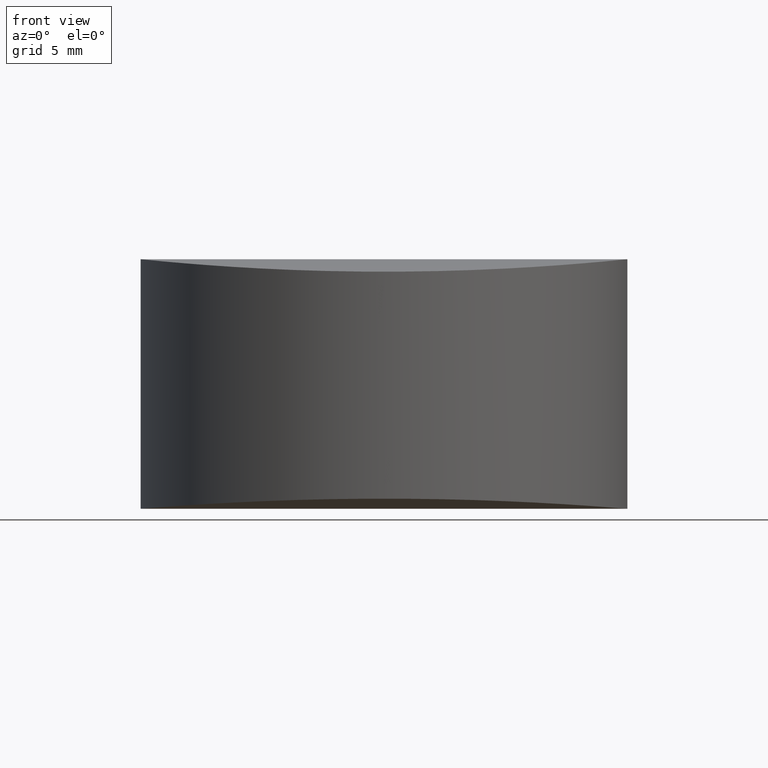
[diagram: clean part render]
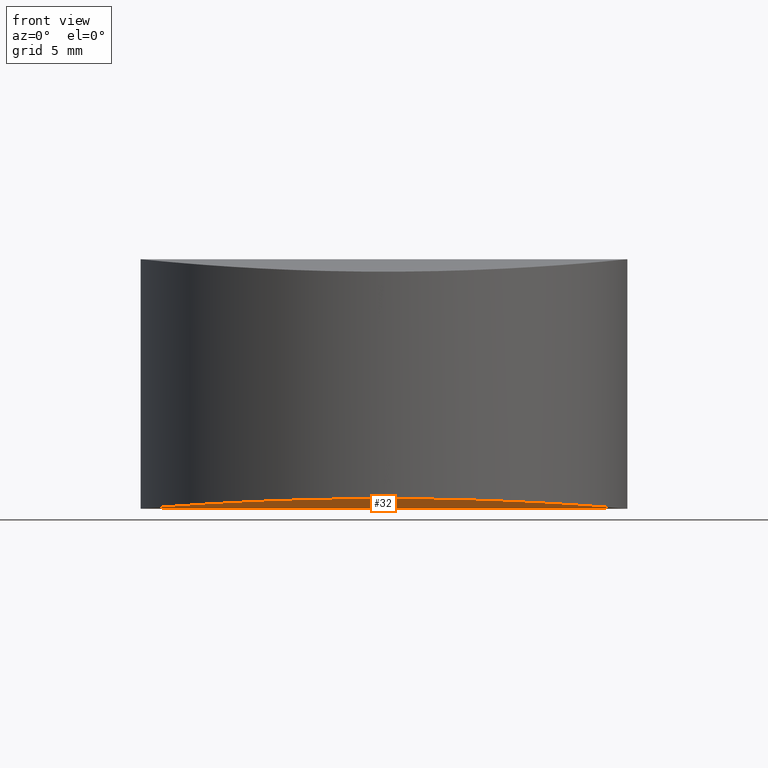
[diagram: same view with one face highlighted and labeled with its STEP entity id]
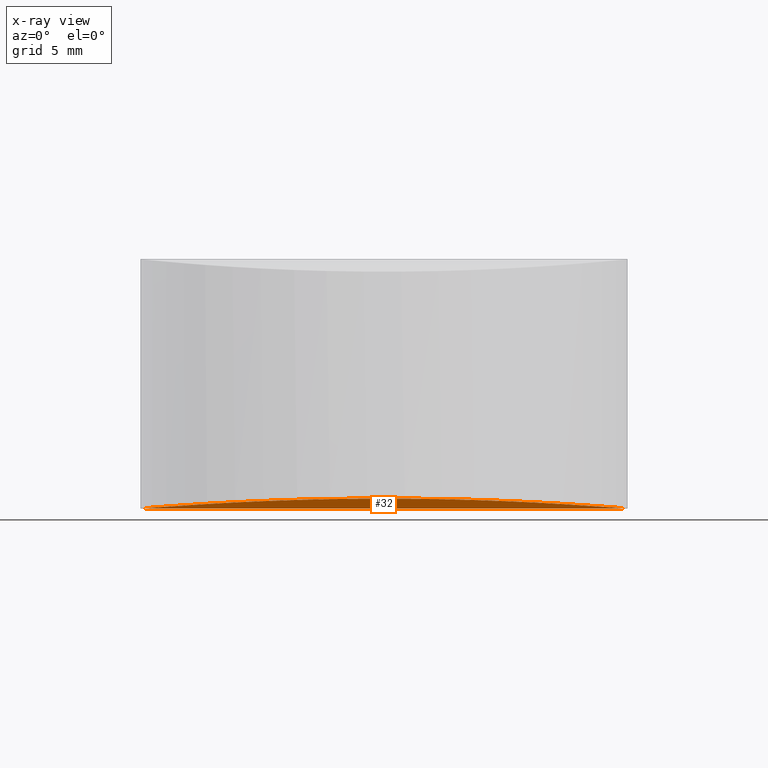
[diagram: x-ray of the same camera — body ghosted, the highlighted face saturated]
A machine part, front view. The second image highlights one B-rep face of the part: STEP entity #32.
The next image is the same camera in x-ray: the body ghosted, the highlighted face saturated — about 0% of this face is hidden behind the body in this view.
In plain terms, the highlighted cylindrical surface (partial cylindrical patch) has radius 140.5 mm, axis along (-1, -0, -0).
Its self-contained STEP definition (entity closure, byte-faithful):
#3 = EDGE_CURVE ( 'NONE', #56, #81, #285, .T. ) ;
#6 = CARTESIAN_POINT ( 'NONE',  ( 3.982995561547500785, 8.802627526571223271, -11.72419075248639686 ) ) ;
#8 = CARTESIAN_POINT ( 'NONE',  ( 13.23733871564719067, 11.62414453370664624, -11.51839965430079715 ) ) ;
#10 = CARTESIAN_POINT ( 'NONE',  ( 0.07583883942204949768, 1.537218956647703028, -11.99362423848649684 ) ) ;
#12 = CARTESIAN_POINT ( 'NONE',  ( 21.85655647599278595, 5.858164344078640617, -11.87926018310879606 ) ) ;
#14 = CARTESIAN_POINT ( 'NONE',  ( 0.6200715280266766438, 3.777770137074502710, -11.94967941558338254 ) ) ;
#22 = CARTESIAN_POINT ( 'NONE',  ( 4.551175283784459680, -9.293829745750009863, -11.69293338668584248 ) ) ;
#30 = CARTESIAN_POINT ( 'NONE',  ( 23.39999999999999858, -1.734723475976807094E-14, -12.00000000000002842 ) ) ;
#32 = ADVANCED_FACE ( 'NONE', ( #231 ), #315, .T. ) ;
#37 = CARTESIAN_POINT ( 'NONE',  ( 0.2986171060930548071, -2.653989659704931725, -11.97542864770713855 ) ) ;
#39 = CARTESIAN_POINT ( 'NONE',  ( 12.47301215958805720, 11.69999035556283218, -11.51200029168871097 ) ) ;
#41 = CARTESIAN_POINT ( 'NONE',  ( 18.84891339696278578, 9.293760770083288492, -11.69293796382826756 ) ) ;
#45 = CARTESIAN_POINT ( 'NONE',  ( 23.32416274024963343, -1.537202877766311815, -11.99362437258974090 ) ) ;
#47 = CARTESIAN_POINT ( 'NONE',  ( 14.72462325462811528, -11.30880293928673908, -11.54418389181506832 ) ) ;
#49 = CARTESIAN_POINT ( 'NONE',  ( 16.88662854336311625, -10.51552536016703066, -11.60624649086615534 ) ) ;
#51 = CARTESIAN_POINT ( 'NONE',  ( 23.39999999999999858, -1.734723475976807094E-14, -12.00000000000002842 ) ) ;
#56 = VERTEX_POINT ( 'NONE', #92 ) ;
#61 = CARTESIAN_POINT ( 'NONE',  ( 2.400120778135727519E-15, -1.591439800476566529E-14, -12.00000000000002487 ) ) ;
#63 = CARTESIAN_POINT ( 'NONE',  ( 7.575573302874869519, 10.95563577515336995, -11.57228736914585987 ) ) ;
#65 = CARTESIAN_POINT ( 'NONE',  ( 1.565426281899078509, 5.858907706403404525, -11.87819331356852892 ) ) ;
#67 = CARTESIAN_POINT ( 'NONE',  ( 17.55894296685362832, 10.13455308222904705, -11.63412722221021944 ) ) ;
#69 = CARTESIAN_POINT ( 'NONE',  ( 10.16283743065999623, -11.62416830244085730, -11.51839767062848985 ) ) ;
#72 = CARTESIAN_POINT ( 'NONE',  ( 0.7444088895784195525, -4.124545188749847213, -11.93989314708536398 ) ) ;
#74 = CARTESIAN_POINT ( 'NONE',  ( 23.39999999999998792, -0.7728711627919478966, -12.00000000000002487 ) ) ;
#75 = CARTESIAN_POINT ( 'NONE',  ( 5.509302477299087286, -9.935441898776597114, -11.64843186779766526 ) ) ;
#78 = CARTESIAN_POINT ( 'NONE',  ( 18.82133060416483161, -9.291127797251709453, -11.69267052076263269 ) ) ;
#81 = VERTEX_POINT ( 'NONE', #61 ) ;
#86 = CARTESIAN_POINT ( 'NONE',  ( 0.8779362651289264186, 4.495236254901521455, -11.92939142474985559 ) ) ;
#88 = DIRECTION ( 'NONE',  ( -1.000000000000000000, -0.000000000000000000, -0.000000000000000000 ) ) ;
#90 = CARTESIAN_POINT ( 'NONE',  ( 19.43711588047457184, 8.809561870354297497, -11.72458239256462065 ) ) ;
#92 = CARTESIAN_POINT ( 'NONE',  ( 23.39999999999999858, -1.734723475976807094E-14, -12.00000000000002842 ) ) ;
#94 = CARTESIAN_POINT ( 'NONE',  ( 15.47784711752203357, 11.07990198258445602, -11.56247997843347264 ) ) ;
#97 = CARTESIAN_POINT ( 'NONE',  ( 19.70062871853417974, -8.545482839970350852, -11.74014259164259322 ) ) ;
#99 = CARTESIAN_POINT ( 'NONE',  ( 21.63542989001358308, -6.190716718690232767, -11.86391005497066864 ) ) ;
#101 = CARTESIAN_POINT ( 'NONE',  ( 2.897445945604871120, -7.717088157217175670, -11.78822306249216467 ) ) ;
#103 = CARTESIAN_POINT ( 'NONE',  ( 13.23282361508650418, -11.62416520523439267, -11.51839519002638923 ) ) ;
#105 = CARTESIAN_POINT ( 'NONE',  ( 21.83460593353969159, -5.858851705195758264, -11.87819564413548790 ) ) ;
#110 = CARTESIAN_POINT ( 'NONE',  ( 23.00881916514715542, 3.024562361228710916, -11.96792190223194119 ) ) ;
#112 = B_SPLINE_CURVE_WITH_KNOTS ( 'NONE', 3,
 ( #347, #201, #291, #37, #176, #239, #72, #208, #277, #273, #235, #101, #152, #182, #22, #75, #269, #180, #335, #247, #299, #131, #69, #355, #305, #103, #210, #47, #358, #360, #49, #329, #353, #78, #328, #97, #177, #302, #99, #105, #300, #157, #274, #216, #307, #45, #74, #51 ),
 .UNSPECIFIED., .F., .F.,
 ( 4, 2, 2, 2, 2, 2, 2, 2, 2, 1, 2, 2, 2, 2, 2, 2, 2, 2, 2, 2, 2, 1, 2, 2, 4 ),
 ( 0.01828516196742803468, 0.02057082520257585978, 0.02171365682014977580, 0.02285648843772369182, 0.02514215167287152039, 0.02628498329044543294, 0.02742781490801934896, 0.02971347814316717406, 0.03085630976074108314, 0.03199914137831499222, 0.03314197299588890477, 0.03428480461346281732, 0.03657046784861063549, 0.03885613108375845365, 0.03999896270133236620, 0.04114179431890627181, 0.04342745755405408303, 0.04457028917162799558, 0.04571312078920189426, 0.04799878402434971936, 0.04914161564192362497, 0.05028444725949753752, 0.05142727887707144313, 0.05257011049464535568, 0.05485577372979317384 ),
 .UNSPECIFIED. ) ;
#113 = ORIENTED_EDGE ( 'NONE', *, *, #3, .F. ) ;
#119 = CARTESIAN_POINT ( 'NONE',  ( 21.22048826543705857, 6.811478211133129790, -11.83515225822453587 ) ) ;
#124 = CARTESIAN_POINT ( 'NONE',  ( 16.88432592861272141, 10.49567260976044736, -11.60754310520130694 ) ) ;
#131 = CARTESIAN_POINT ( 'NONE',  ( 9.029036142381471564, -11.39756515415939475, -11.53696387847076998 ) ) ;
#134 = EDGE_CURVE ( 'NONE', #81, #56, #112, .T. ) ;
#138 = CARTESIAN_POINT ( 'NONE',  ( 23.39999999999999147, 0.7728711628131414990, -12.00000000000002665 ) ) ;
#141 = CARTESIAN_POINT ( 'NONE',  ( 17.89080433049062790, 9.935375168748358021, -11.64843659956239463 ) ) ;
#145 = CARTESIAN_POINT ( 'NONE',  ( 10.92727981659755798, 11.70000964261554799, -11.51199867998030335 ) ) ;
#148 = CARTESIAN_POINT ( 'NONE',  ( 20.50261246364091505, 7.717021351404852680, -11.78822673520258313 ) ) ;
#150 = DIRECTION ( 'NONE',  ( 0.000000000000000000, 0.000000000000000000, 1.000000000000000000 ) ) ;
#152 = CARTESIAN_POINT ( 'NONE',  ( 3.154523298431360256, -8.000635380293878995, -11.77228095979043054 ) ) ;
#157 = CARTESIAN_POINT ( 'NONE',  ( 22.52208180832384699, -4.495191729084483612, -11.92939282672188384 ) ) ;
#163 = EDGE_LOOP ( 'NONE', ( #113, #253 ) ) ;
#165 = CARTESIAN_POINT ( 'NONE',  ( 0.3024493376041800796, 2.671026038821413984, -11.97511698997220186 ) ) ;
#170 = CARTESIAN_POINT ( 'NONE',  ( 14.37112619128460977, 11.39752698996652924, -11.53696698724230885 ) ) ;
#172 = CARTESIAN_POINT ( 'NONE',  ( 0.3969480738167474043, 3.045879069599135569, -11.96745749760723498 ) ) ;
#174 = CARTESIAN_POINT ( 'NONE',  ( 22.65560668606557471, 4.124503458994857930, -11.93989436517893310 ) ) ;
#176 = CARTESIAN_POINT ( 'NONE',  ( 0.3911890143094745032, -3.024593475415615185, -11.96792124186440986 ) ) ;
#177 = CARTESIAN_POINT ( 'NONE',  ( 20.50962034996463501, -7.737049614015326426, -11.78784533109107890 ) ) ;
#180 = CARTESIAN_POINT ( 'NONE',  ( 6.515796357767368541, -10.49573314314396733, -11.60753856778463522 ) ) ;
#182 = CARTESIAN_POINT ( 'NONE',  ( 3.962961990564490833, -8.809630924300970278, -11.72457805813054854 ) ) ;
#194 = AXIS2_PLACEMENT_3D ( 'NONE', #265, #88, #150 ) ;
#196 = CARTESIAN_POINT ( 'NONE',  ( 2.424020065497973457E-15, 0.7728792911759192474, -12.00000000000002665 ) ) ;
#199 = CARTESIAN_POINT ( 'NONE',  ( 20.99117683622786146, 7.121266581235918380, -11.81972969374128368 ) ) ;
#201 = CARTESIAN_POINT ( 'NONE',  ( 2.370845219364786649E-15, -0.7728792911547224254, -12.00000000000002665 ) ) ;
#204 = CARTESIAN_POINT ( 'NONE',  ( 14.74597115083577137, 11.30302687492712010, -11.54465041235039102 ) ) ;
#206 = CARTESIAN_POINT ( 'NONE',  ( 8.675532182843904039, 11.30884462609598096, -11.54418052236263748 ) ) ;
#208 = CARTESIAN_POINT ( 'NONE',  ( 1.184467997860975563, -5.186615956781576386, -11.90602143651821976 ) ) ;
#210 = CARTESIAN_POINT ( 'NONE',  ( 14.35402199147960900, -11.40137529016258888, -11.53665303616094562 ) ) ;
#216 = CARTESIAN_POINT ( 'NONE',  ( 23.00306021372547249, -3.045847824117852376, -11.96745816627809056 ) ) ;
#227 = CARTESIAN_POINT ( 'NONE',  ( 20.24553979347370003, 8.000567808726462005, -11.77228481284947748 ) ) ;
#231 = FACE_OUTER_BOUND ( 'NONE', #163, .T. ) ;
#233 = CARTESIAN_POINT ( 'NONE',  ( 2.400120778135727519E-15, -1.591439800476566529E-14, -12.00000000000002487 ) ) ;
#235 = CARTESIAN_POINT ( 'NONE',  ( 2.408872658542130285, -7.121331352466596876, -11.81972640874908898 ) ) ;
#239 = CARTESIAN_POINT ( 'NONE',  ( 0.6137794146774335768, -3.759399517897988208, -11.95017614430741304 ) ) ;
#247 = CARTESIAN_POINT ( 'NONE',  ( 7.922297152581086799, -11.07995132871551291, -11.56247607193387594 ) ) ;
#253 = ORIENTED_EDGE ( 'NONE', *, *, #134, .F. ) ;
#255 = CARTESIAN_POINT ( 'NONE',  ( 23.32417234253878391, 1.532767790762665117, -11.99362786624891086 ) ) ;
#257 = CARTESIAN_POINT ( 'NONE',  ( 22.78623347452534276, 3.759361080725645898, -11.95017716355226867 ) ) ;
#259 = CARTESIAN_POINT ( 'NONE',  ( 5.841883407253506633, 10.15658483221741726, -11.63305987221557558 ) ) ;
#263 = CARTESIAN_POINT ( 'NONE',  ( 1.764606549602166563, 6.190775430006238089, -11.86390746951188646 ) ) ;
#265 = CARTESIAN_POINT ( 'NONE',  ( 23.39999999999999858, -2.117859928473768005E-15, 128.5000000000000000 ) ) ;
#269 = CARTESIAN_POINT ( 'NONE',  ( 5.841168882209669455, -10.13461787880729936, -11.63412253332844060 ) ) ;
#273 = CARTESIAN_POINT ( 'NONE',  ( 2.179556174245997457, -6.811540560842898273, -11.83514923692068166 ) ) ;
#274 = CARTESIAN_POINT ( 'NONE',  ( 22.77994130366390024, -3.777732106720883110, -11.94968042965643740 ) ) ;
#277 = CARTESIAN_POINT ( 'NONE',  ( 1.543475057580754317, -5.858220113600820511, -11.87925787574100767 ) ) ;
#284 = CARTESIAN_POINT ( 'NONE',  ( 23.10138913313453912, 2.653962277840836048, -11.97542915491631454 ) ) ;
#285 = B_SPLINE_CURVE_WITH_KNOTS ( 'NONE', 3,
 ( #30, #138, #255, #284, #110, #257, #174, #351, #12, #119, #199, #148, #227, #90, #41, #141, #67, #124, #320, #94, #204, #170, #8, #39, #145, #293, #289, #206, #326, #63, #323, #259, #345, #343, #6, #296, #287, #349, #263, #65, #317, #86, #14, #172, #165, #10, #196, #233 ),
 .UNSPECIFIED., .F., .F.,
 ( 4, 2, 2, 2, 2, 2, 2, 2, 2, 1, 2, 2, 2, 2, 2, 2, 2, 2, 2, 2, 2, 1, 2, 2, 4 ),
 ( 0.05485577372979317384, 0.05714143696500378206, 0.05828426858260908616, 0.05942710020021439027, 0.06171276343542499154, 0.06285559505303030259, 0.06399842667063559976, 0.06628408990584620797, 0.06742692152345150514, 0.06856975314105681618, 0.06971258475866212723, 0.07085541637626742439, 0.07314107961147803261, 0.07542674284668864082, 0.07656957446429395187, 0.07771240608189924903, 0.07999806931710987112, 0.08114090093471516829, 0.08228373255232046546, 0.08456939578753107367, 0.08571222740513637084, 0.08685505902274168188, 0.08799789064034699293, 0.08914072225795229010, 0.09142638549316289831 ),
 .UNSPECIFIED. ) ;
#287 = CARTESIAN_POINT ( 'NONE',  ( 2.890437360382252407, 7.737116149366350726, -11.78784166734642191 ) ) ;
#289 = CARTESIAN_POINT ( 'NONE',  ( 9.046138238676569188, 11.40141271651924093, -11.53664998654348750 ) ) ;
#291 = CARTESIAN_POINT ( 'NONE',  ( 0.07582923724121559683, -1.532783777119923085, -11.99362773227861290 ) ) ;
#293 = CARTESIAN_POINT ( 'NONE',  ( 10.16735118020372042, 11.62418875955066788, -11.51839322469982996 ) ) ;
#296 = CARTESIAN_POINT ( 'NONE',  ( 3.699444525946414153, 8.545551600635532097, -11.74013840316434987 ) ) ;
#299 = CARTESIAN_POINT ( 'NONE',  ( 8.654184770364842905, -11.30306904504365484, -11.54464700591283055 ) ) ;
#300 = CARTESIAN_POINT ( 'NONE',  ( 22.19572154500289685, -5.184227037985038145, -11.90472835921616479 ) ) ;
#302 = CARTESIAN_POINT ( 'NONE',  ( 20.99381805016843927, -7.148839654947266808, -11.81946753473547318 ) ) ;
#305 = CARTESIAN_POINT ( 'NONE',  ( 12.47292392178790799, -11.69999675705966702, -11.51199975675232778 ) ) ;
#307 = CARTESIAN_POINT ( 'NONE',  ( 23.09755702232098784, -2.670998305455633659, -11.97511750684068943 ) ) ;
#315 = CYLINDRICAL_SURFACE ( 'NONE', #194, 140.5000000000000000 ) ;
#317 = CARTESIAN_POINT ( 'NONE',  ( 1.204303208327427877, 5.184277463354874271, -11.90472650404871580 ) ) ;
#320 = CARTESIAN_POINT ( 'NONE',  ( 16.19529850685433203, 10.82203715852323711, -11.58282321354267985 ) ) ;
#323 = CARTESIAN_POINT ( 'NONE',  ( 6.513493404900872363, 10.51558617529760298, -11.60624191533891292 ) ) ;
#326 = CARTESIAN_POINT ( 'NONE',  ( 7.940721809308531220, 11.08626176126039198, -11.56197651439197749 ) ) ;
#328 = CARTESIAN_POINT ( 'NONE',  ( 19.41708317178070686, -8.802558300772389543, -11.72419509788413805 ) ) ;
#329 = CARTESIAN_POINT ( 'NONE',  ( 17.55822736712480747, -10.15652038329526796, -11.63306455073878531 ) ) ;
#335 = CARTESIAN_POINT ( 'NONE',  ( 7.204834472404978207, -10.82209281571610759, -11.58281890493709732 ) ) ;
#343 = CARTESIAN_POINT ( 'NONE',  ( 4.578759834622079694, 9.291197306141617318, -11.69266591437509462 ) ) ;
#345 = CARTESIAN_POINT ( 'NONE',  ( 4.888553610708962438, 9.520511249553457844, -11.67722724001259671 ) ) ;
#347 = CARTESIAN_POINT ( 'NONE',  ( 2.400120778135727519E-15, -1.591439800476566529E-14, -12.00000000000002487 ) ) ;
#349 = CARTESIAN_POINT ( 'NONE',  ( 2.406230533546055650, 7.148903612465109525, -11.81946429229798134 ) ) ;
#351 = CARTESIAN_POINT ( 'NONE',  ( 22.21555638760216311, 5.186565379059743464, -11.90602327504407043 ) ) ;
#353 = CARTESIAN_POINT ( 'NONE',  ( 18.51154139442227731, -9.520443129254942960, -11.67723186841751115 ) ) ;
#355 = CARTESIAN_POINT ( 'NONE',  ( 10.92717426020882776, -11.70000324273438430, -11.51199921478168697 ) ) ;
#358 = CARTESIAN_POINT ( 'NONE',  ( 15.45942414535042353, -11.08621215056854936, -11.56198044436156280 ) ) ;
#360 = CARTESIAN_POINT ( 'NONE',  ( 15.82456678074026968, -10.95558287737353886, -11.57229150926645111 ) ) ;